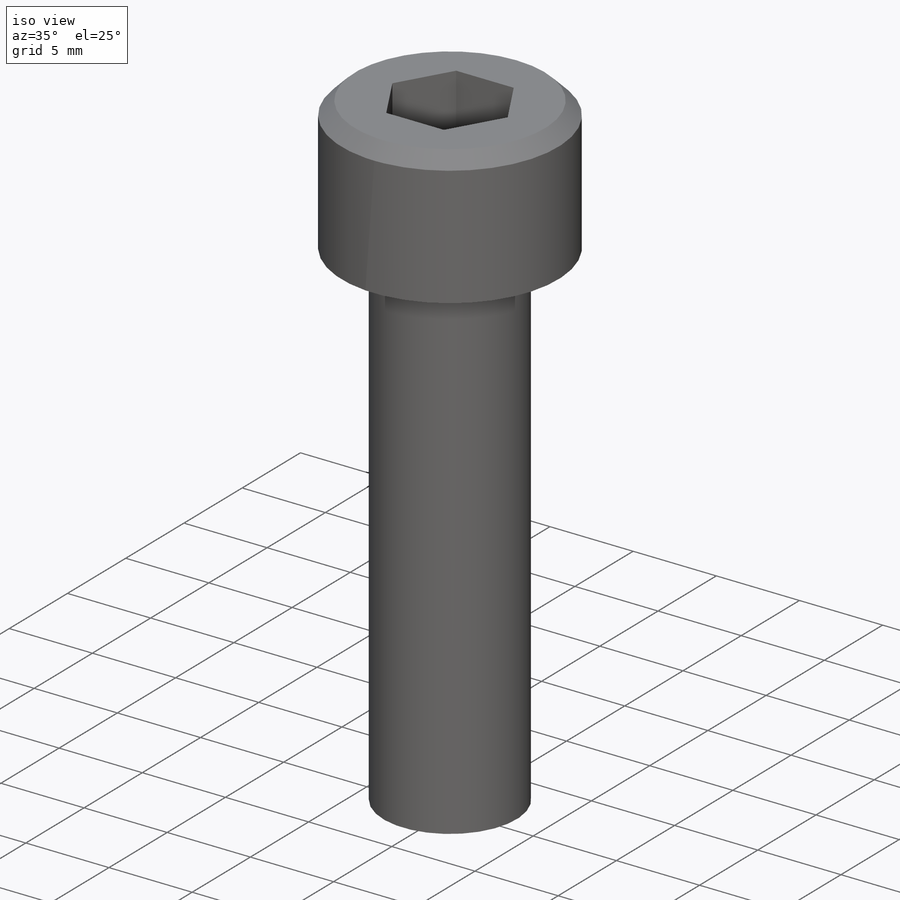
[diagram: iso view]
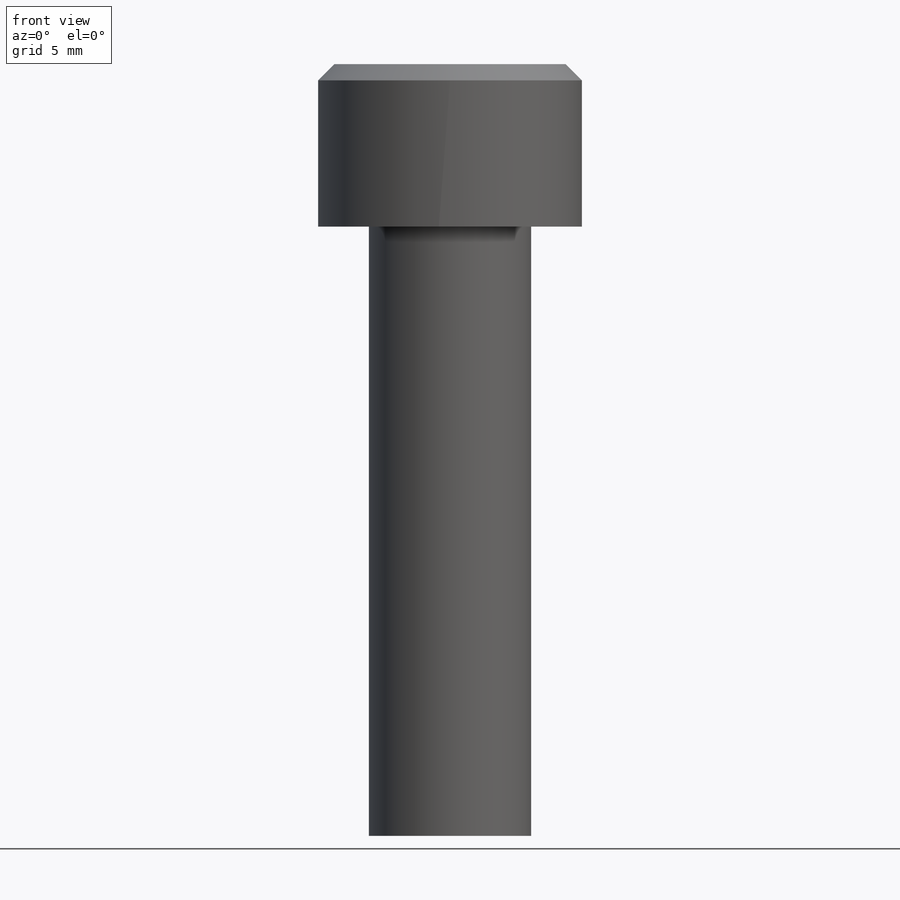
[diagram: front view]
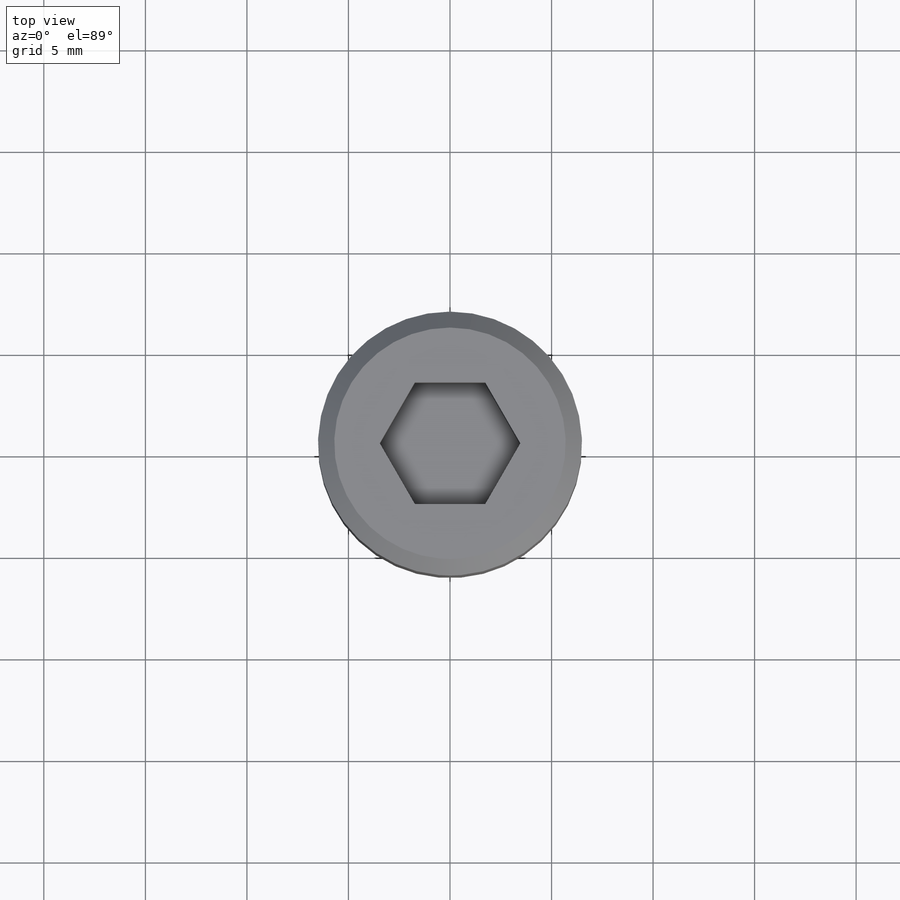
[diagram: top view]
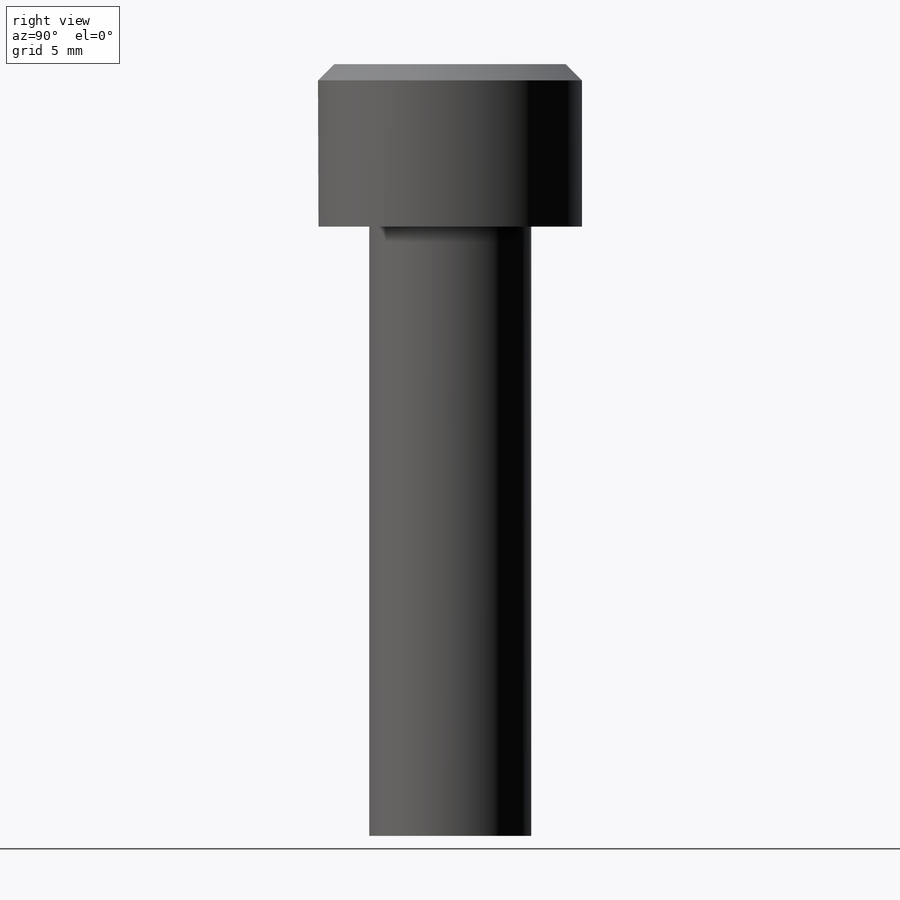
[diagram: right view]
SOLIDWORKS PART (.sldprt)
format: sldprt  version: not decoded by parser v0  size: 4,661,248 bytes
history: native  units: mm
features: plane x3, sketch x2, material x1, revolve x1, thread x1, cut_extrude x1, chamfer x1 + 3 further entries (+9 scaffold rows collapsed)
feature tree (22):
  scaffold x9  (default folders/planes/origin — collapsed)
  material  "Alloy Steel"
  plane  "Front (1)"
  plane  "Top (2)"
  plane  "Right (3)"
  "Design Table"
  "Y Axis"
  "Z Axis"
  sketch  "Sketch1"  dims[Major=3.0mm Length=18.0mm Head Diameter=5.5mm Head Height=3.0mm]
  revolve  "Revolve1"  [1 undecoded]
  thread  "Cosmetic Thread1"  Diameter=18mm  [1 undecoded]
  sketch  "Sketch2"  dims[Key Size=2.5mm]
  cut_extrude  "Cut-Extrude1"  Depth=1.3mm Socket Depth=1.3mm
  chamfer  "Chamfer1"  Distance=0.3mm Angle=45deg
decode coverage: 5 of 6 modeling features carry decoded parameters; 3 rows unclassified (native names shown)
note: 2 parameter values undecoded
note: suppression state not decoded; provenance and decode notes live in map.json
